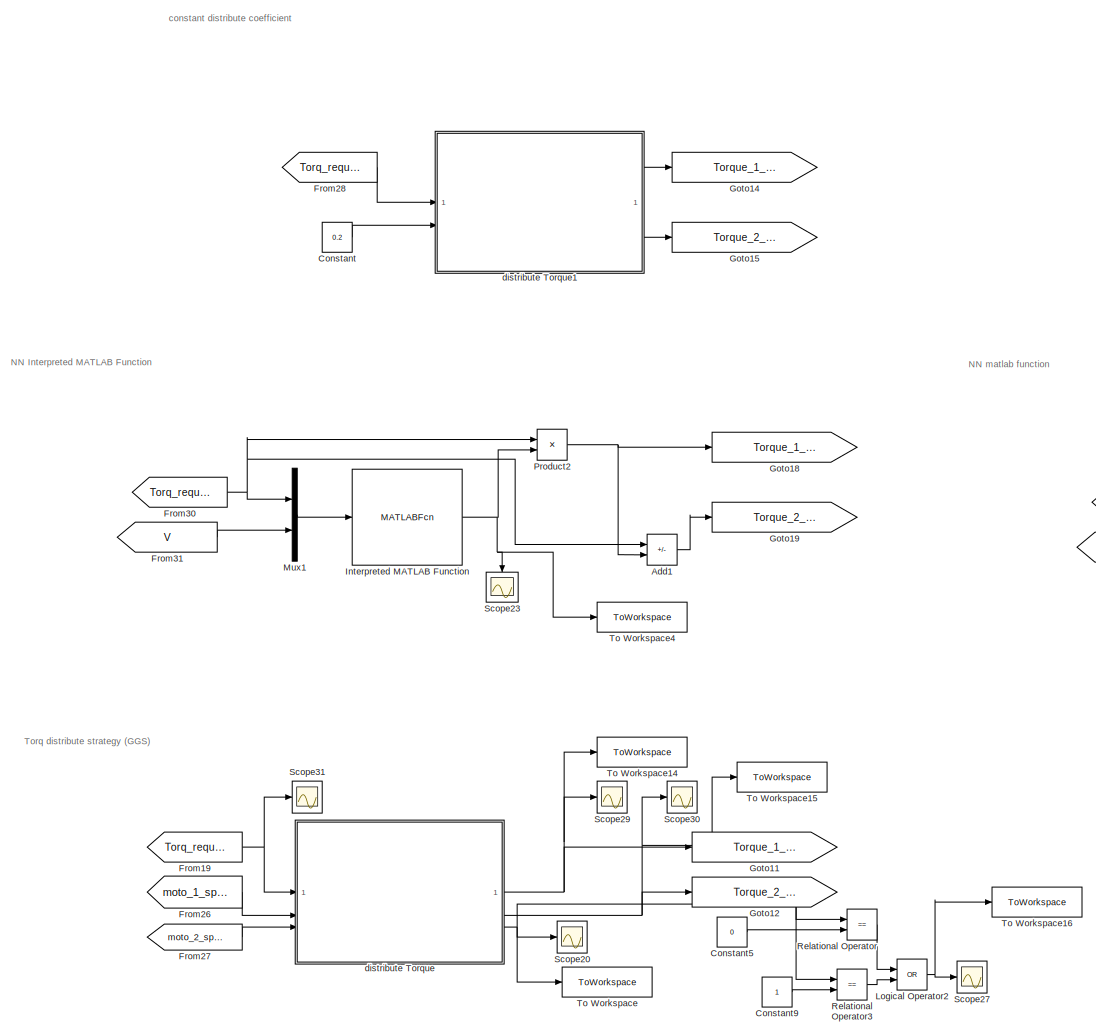
[diagram: root canvas - part 1/7, top center region]
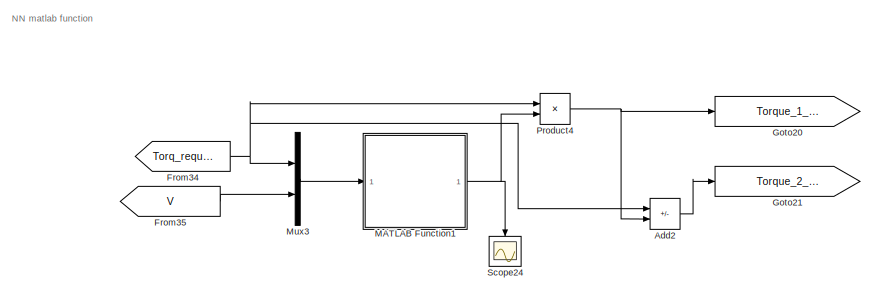
[diagram: root canvas - part 2/7, top right region]
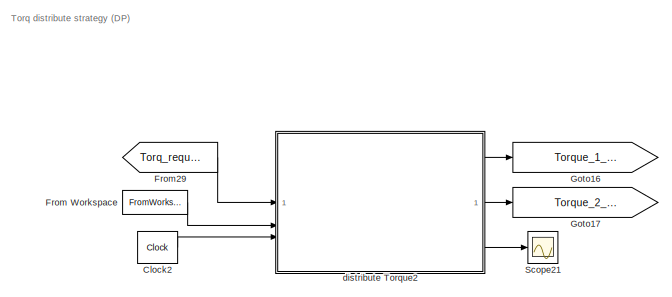
[diagram: root canvas - part 3/7, top right region]
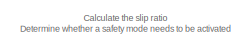
[diagram: root canvas - part 4/7, middle left region]
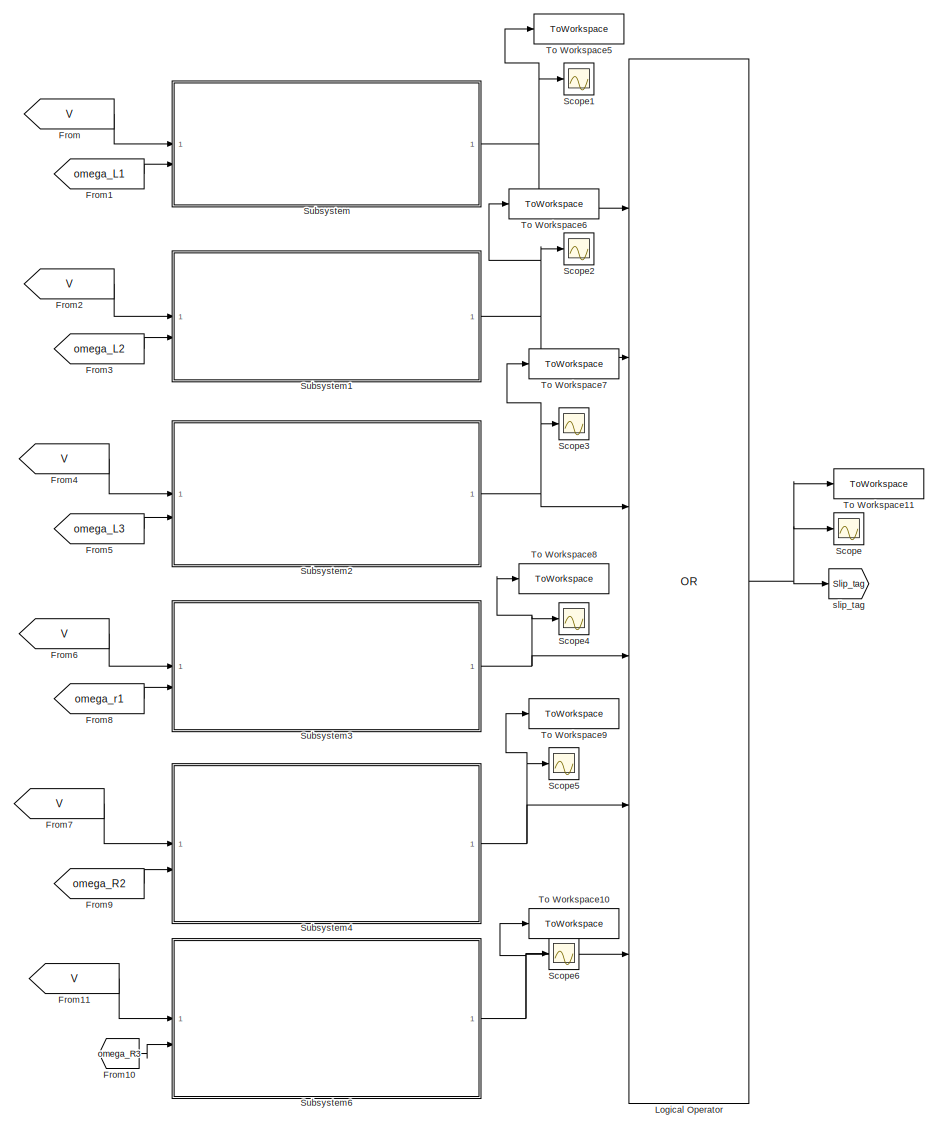
[diagram: root canvas - part 5/7, bottom center region]
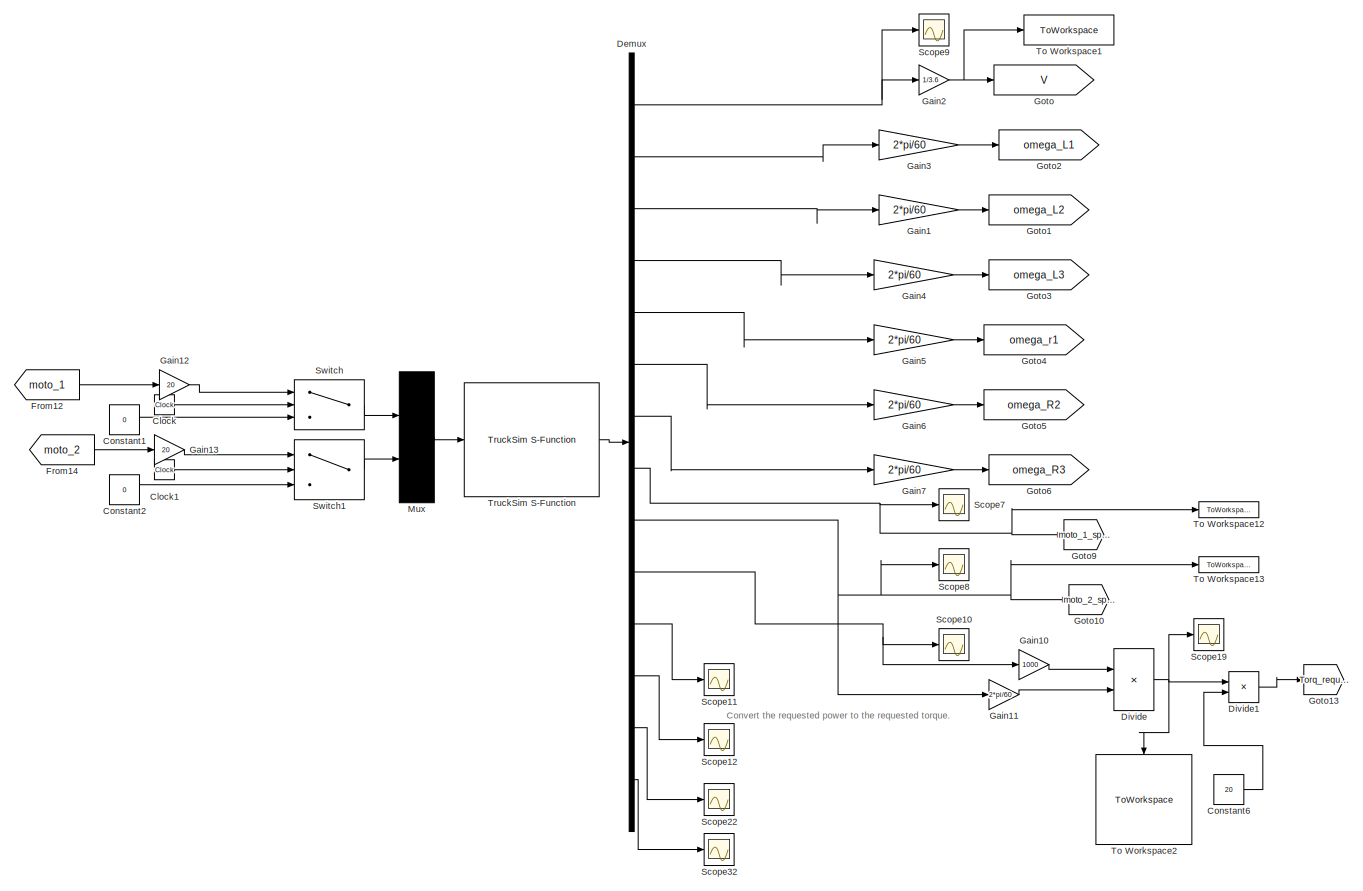
[diagram: root canvas - part 6/7, bottom left region]
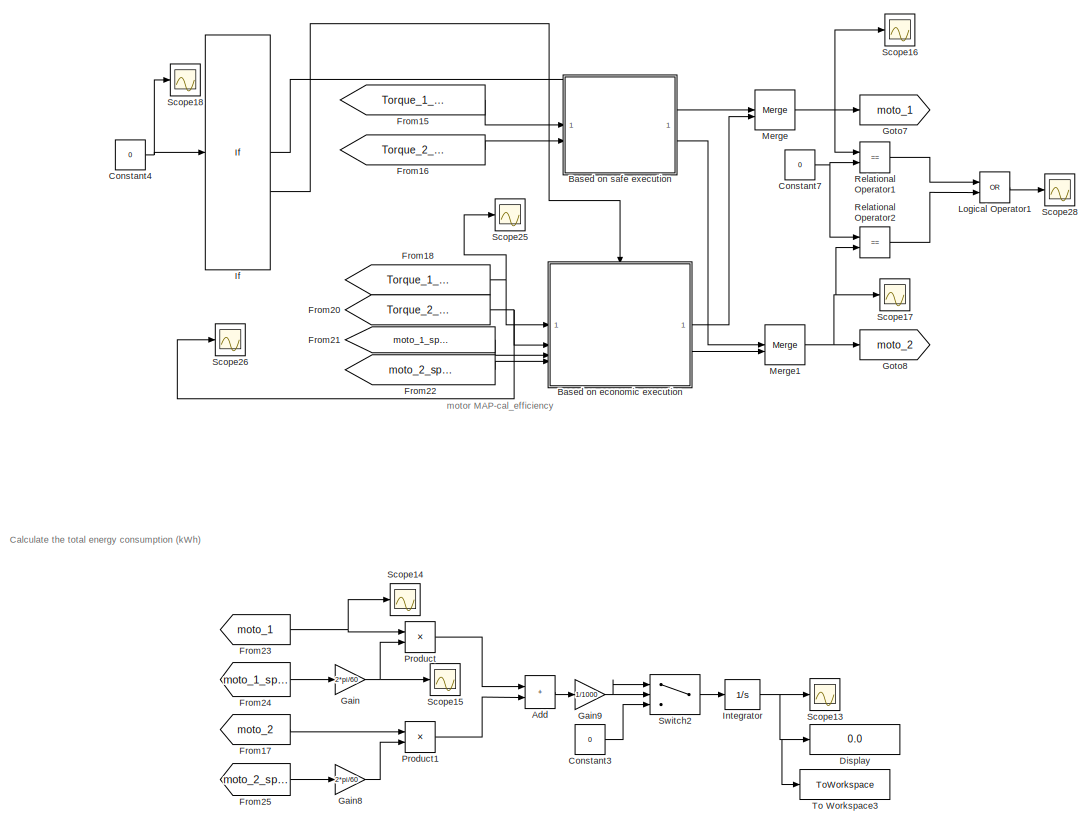
[diagram: root canvas - part 7/7, bottom center region]
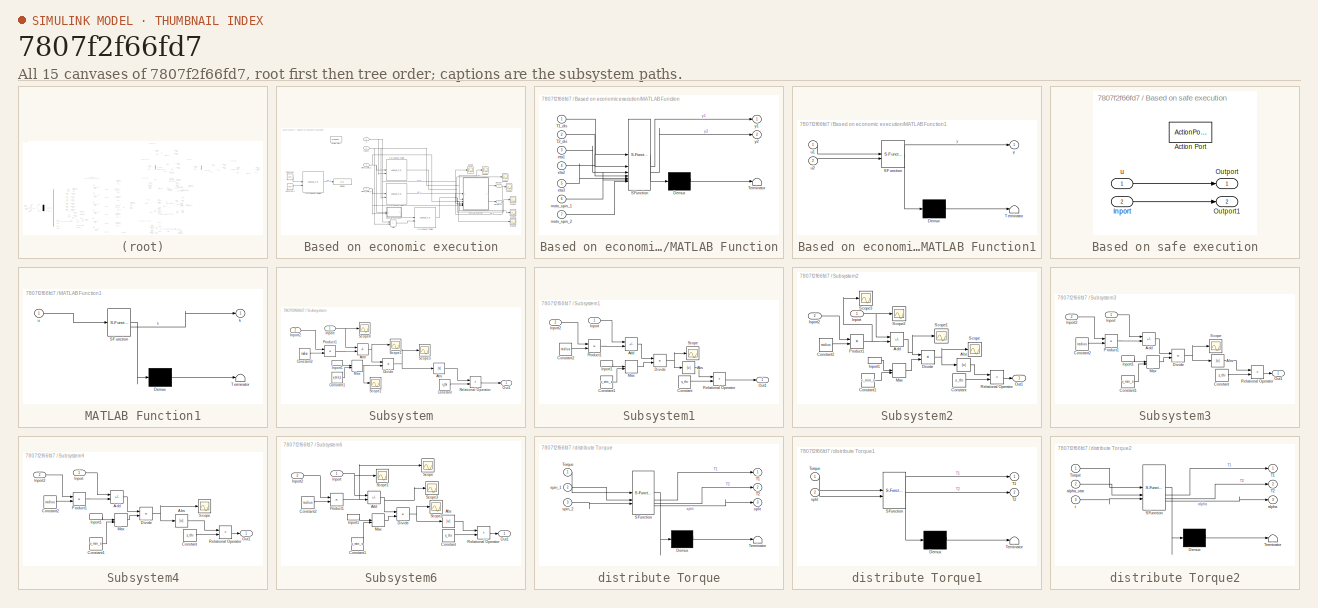
[diagram: thumbnail index - all 15 canvases of the model, root first then tree order]
MODEL slx_7807f2f66fd7
KIND model
CONFIG AbsTol = auto
CONFIG EnableMultiTasking = off
CONFIG FixedStep = 0.0005
CONFIG MaxStep = auto
CONFIG MinStep = auto
CONFIG RelTol = 1e-3
CONFIG SampleTimeConstraint = Unconstrained
CONFIG SolverName = FixedStepAuto
CONFIG StartTime = 0.0
CONFIG StopTime = 20
BLOCK [Sum] Add
  IconShape = rectangular
BLOCK [Sum] Add1
  Commented = on
  IconShape = rectangular
  Inputs = +-
BLOCK [Sum] Add2
  Commented = on
  IconShape = rectangular
  Inputs = +-
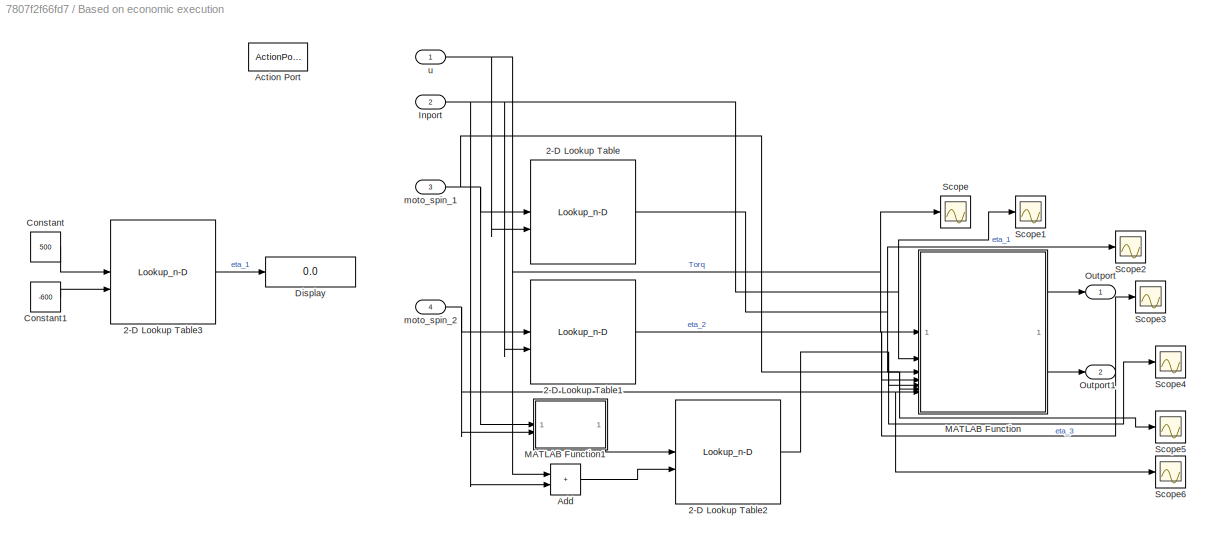
BLOCK [SubSystem] Based on economic execution
  TreatAsAtomicUnit = on
BLOCK [Lookup_n-D] Based on economic execution/2-D Lookup Table
  BreakpointsForDimension1 = speed_rpm
  BreakpointsForDimension2 = torque_nm
  InputPortMap = u0,u1
  InternalRulePriority = Speed
  RndMeth = Simplest
  Table = efficiency_map
BLOCK [Lookup_n-D] Based on economic execution/2-D Lookup Table1
  BreakpointsForDimension1 = speed_rpm
  BreakpointsForDimension2 = torque_nm
  InputPortMap = u0,u1
  InternalRulePriority = Speed
  RndMeth = Simplest
  Table = efficiency_map
BLOCK [Lookup_n-D] Based on economic execution/2-D Lookup Table2
  BreakpointsForDimension1 = speed_rpm
  BreakpointsForDimension2 = torque_nm
  InputPortMap = u0,u1
  InternalRulePriority = Speed
  RndMeth = Simplest
  Table = efficiency_map
BLOCK [Lookup_n-D] Based on economic execution/2-D Lookup Table3
  BreakpointsForDimension1 = speed_rpm
  BreakpointsForDimension2 = torque_nm
  InputPortMap = u0,u1
  InternalRulePriority = Speed
  RndMeth = Simplest
  Table = efficiency_map
BLOCK [ActionPort] Based on economic execution/Action Port
  ActionPortLabel = else
BLOCK [Sum] Based on economic execution/Add
  IconShape = rectangular
BLOCK [Constant] Based on economic execution/Constant
  Value = 500
BLOCK [Constant] Based on economic execution/Constant1
  Value = -600
BLOCK [Display] Based on economic execution/Display
  Decimation = 1
BLOCK [Inport] Based on economic execution/Inport
  Port = 2
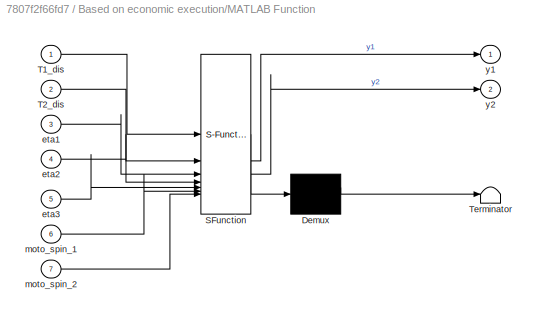
BLOCK [SubSystem] Based on economic execution/MATLAB Function
  ErrorFcn = Stateflow.Translate.translate
  PermitHierarchicalResolution = ExplicitOnly
  SFBlockType = MATLAB Function
  TreatAsAtomicUnit = on
BLOCK [Demux] Based on economic execution/MATLAB Function/ Demux 
  Outputs = 1
BLOCK [S-Function] Based on economic execution/MATLAB Function/ SFunction 
  EnableBusSupport = on
  FunctionName = sf_sfun
  PortCounts = [7 3]
  SFcnIsStateOwnerBlock = off
  SFunctionDeploymentMode = off
  Tag = Stateflow S-Function 3
BLOCK [Terminator] Based on economic execution/MATLAB Function/ Terminator 
BLOCK [Inport] Based on economic execution/MATLAB Function/T1_dis
BLOCK [Inport] Based on economic execution/MATLAB Function/T2_dis
  Port = 2
BLOCK [Inport] Based on economic execution/MATLAB Function/eta1
  Port = 3
BLOCK [Inport] Based on economic execution/MATLAB Function/eta2
  Port = 4
BLOCK [Inport] Based on economic execution/MATLAB Function/eta3
  Port = 5
BLOCK [Inport] Based on economic execution/MATLAB Function/moto_spin_1
  Port = 6
BLOCK [Inport] Based on economic execution/MATLAB Function/moto_spin_2
  Port = 7
BLOCK [Outport] Based on economic execution/MATLAB Function/y1
BLOCK [Outport] Based on economic execution/MATLAB Function/y2
  Port = 2
BLOCK [SubSystem] Based on economic execution/MATLAB Function1
  ErrorFcn = Stateflow.Translate.translate
  PermitHierarchicalResolution = ExplicitOnly
  SFBlockType = MATLAB Function
  TreatAsAtomicUnit = on
BLOCK [Demux] Based on economic execution/MATLAB Function1/ Demux 
  Outputs = 1
BLOCK [S-Function] Based on economic execution/MATLAB Function1/ SFunction 
  EnableBusSupport = on
  FunctionName = sf_sfun
  PortCounts = [2 2]
  SFcnIsStateOwnerBlock = off
  SFunctionDeploymentMode = off
  Tag = Stateflow S-Function 4
BLOCK [Terminator] Based on economic execution/MATLAB Function1/ Terminator 
BLOCK [Inport] Based on economic execution/MATLAB Function1/u1
BLOCK [Inport] Based on economic execution/MATLAB Function1/u2
  Port = 2
BLOCK [Outport] Based on economic execution/MATLAB Function1/y
BLOCK [Outport] Based on economic execution/Outport
BLOCK [Outport] Based on economic execution/Outport1
  Port = 2
BLOCK [Scope] Based on economic execution/Scope
  Floating = off
  NumInputPorts = 1
  ScopeSpecificationString = Simulink.scopes.TimeScopeBlockCfg('CurrentConfiguration', extmgr.ConfigurationSet(extmgr.Configuration('Core','General UI',true),extmgr.Configuration('Core','Source UI',true),extmgr.Configuration('Sources','WiredSimulink',true,'DataLoggingVariableName','ScopeData7'),extmgr.Configuration('Visuals','Time Domain',true,'SerializedDisplays',{struct('MinYLimReal','-20.50033','MaxYLimReal','184.50297','Y...<+1462ch>
BLOCK [Scope] Based on economic execution/Scope1
  Floating = off
  NumInputPorts = 1
  ScopeSpecificationString = Simulink.scopes.TimeScopeBlockCfg('CurrentConfiguration', extmgr.ConfigurationSet(extmgr.Configuration('Core','General UI',true),extmgr.Configuration('Core','Source UI',true),extmgr.Configuration('Sources','WiredSimulink',true,'DataLoggingVariableName','ScopeData8'),extmgr.Configuration('Visuals','Time Domain',true,'SerializedDisplays',{struct('MinYLimReal','-20.50033','MaxYLimReal','184.50297','Y...<+1464ch>
BLOCK [Scope] Based on economic execution/Scope2
  Floating = off
  NumInputPorts = 1
  ScopeSpecificationString = Simulink.scopes.TimeScopeBlockCfg('CurrentConfiguration', extmgr.ConfigurationSet(extmgr.Configuration('Core','General UI',true),extmgr.Configuration('Core','Source UI',true),extmgr.Configuration('Sources','WiredSimulink',true,'DataLoggingVariableName','ScopeData9'),extmgr.Configuration('Visuals','Time Domain',true,'SerializedDisplays',{struct('MinYLimReal','0.8171','MaxYLimReal','0.95453','YLabel...<+1515ch>
BLOCK [Scope] Based on economic execution/Scope3
  Floating = off
  NumInputPorts = 1
  ScopeSpecificationString = Simulink.scopes.TimeScopeBlockCfg('CurrentConfiguration', extmgr.ConfigurationSet(extmgr.Configuration('Core','General UI',true),extmgr.Configuration('Core','Source UI',true),extmgr.Configuration('Sources','WiredSimulink',true,'DataLoggingVariableName','ScopeData10'),extmgr.Configuration('Visuals','Time Domain',true,'SerializedDisplays',{struct('MinYLimReal','0.8171','MaxYLimReal','0.95454','YLabe...<+1448ch>
BLOCK [Scope] Based on economic execution/Scope4
  Floating = off
  NumInputPorts = 1
  ScopeSpecificationString = Simulink.scopes.TimeScopeBlockCfg('CurrentConfiguration', extmgr.ConfigurationSet(extmgr.Configuration('Core','General UI',true),extmgr.Configuration('Core','Source UI',true),extmgr.Configuration('Sources','WiredSimulink',true,'DataLoggingVariableName','ScopeData11'),extmgr.Configuration('Visuals','Time Domain',true,'SerializedDisplays',{struct('MinYLimReal','0.81713','MaxYLimReal','0.95433','YLab...<+1452ch>
BLOCK [Scope] Based on economic execution/Scope5
  Floating = off
  NumInputPorts = 1
  ScopeSpecificationString = Simulink.scopes.TimeScopeBlockCfg('CurrentConfiguration', extmgr.ConfigurationSet(extmgr.Configuration('Core','General UI',true),extmgr.Configuration('Core','Source UI',true),extmgr.Configuration('Sources','WiredSimulink',true,'DataLoggingVariableName','ScopeData12'),extmgr.Configuration('Visuals','Time Domain',true,'SerializedDisplays',{struct('MinYLimReal','1570.94394','MaxYLimReal','1626.73685'...<+1482ch>
BLOCK [Scope] Based on economic execution/Scope6
  Floating = off
  NumInputPorts = 1
  ScopeSpecificationString = Simulink.scopes.TimeScopeBlockCfg('CurrentConfiguration', extmgr.ConfigurationSet(extmgr.Configuration('Core','General UI',true),extmgr.Configuration('Core','Source UI',true),extmgr.Configuration('Sources','WiredSimulink',true,'DataLoggingVariableName','ScopeData13'),extmgr.Configuration('Visuals','Time Domain',true),extmgr.Configuration('Tools','Plot Navigation',true),extmgr.Configuration('Tools'...<+41ch>
BLOCK [Inport] Based on economic execution/moto_spin_1
  Port = 3
BLOCK [Inport] Based on economic execution/moto_spin_2
  Port = 4
BLOCK [Inport] Based on economic execution/u
BLOCK [SubSystem] Based on safe execution
  TreatAsAtomicUnit = on
BLOCK [ActionPort] Based on safe execution/Action Port
  ActionPortLabel = if(u1 ~= 0)
BLOCK [Inport] Based on safe execution/Inport
  Port = 2
BLOCK [Outport] Based on safe execution/Outport
BLOCK [Outport] Based on safe execution/Outport1
  Port = 2
BLOCK [Inport] Based on safe execution/u
BLOCK [Clock] Clock
BLOCK [Clock] Clock1
BLOCK [Clock] Clock2
  Commented = on
BLOCK [Constant] Constant
  Commented = on
  Value = 0.2
BLOCK [Constant] Constant1
  Value = 0
BLOCK [Constant] Constant2
  Value = 0
BLOCK [Constant] Constant3
  Value = 0
BLOCK [Constant] Constant4
  Value = 0
BLOCK [Constant] Constant5
  Value = 0
BLOCK [Constant] Constant6
  Value = 20
BLOCK [Constant] Constant7
  Value = 0
BLOCK [Constant] Constant9
BLOCK [Demux] Demux
  Outputs = 14
BLOCK [Display] Display
  Decimation = 1
BLOCK [Product] Divide
  Inputs = */
BLOCK [Product] Divide1
  Inputs = */
BLOCK [From] From
  GotoTag = V
BLOCK [FromWorkspace] From Workspace
  Commented = on
  VariableName = alpha_star
BLOCK [From] From1
  GotoTag = omega_L1
BLOCK [From] From10
  GotoTag = omega_R3
BLOCK [From] From11
  GotoTag = V
BLOCK [From] From12
  GotoTag = moto_1
BLOCK [From] From14
  GotoTag = moto_2
BLOCK [From] From15
  GotoTag = Torque_1_distribute
BLOCK [From] From16
  GotoTag = Torque_2_distribute
BLOCK [From] From17
  GotoTag = moto_2
BLOCK [From] From18
  GotoTag = Torque_1_distribute
BLOCK [From] From19
  GotoTag = Torq_require
BLOCK [From] From2
  GotoTag = V
BLOCK [From] From20
  GotoTag = Torque_2_distribute
BLOCK [From] From21
  GotoTag = moto_1_spin
BLOCK [From] From22
  GotoTag = moto_2_spin
BLOCK [From] From23
  GotoTag = moto_1
BLOCK [From] From24
  GotoTag = moto_1_spin
BLOCK [From] From25
  GotoTag = moto_2_spin
BLOCK [From] From26
  GotoTag = moto_1_spin
BLOCK [From] From27
  GotoTag = moto_2_spin
BLOCK [From] From28
  Commented = on
  GotoTag = Torq_require
BLOCK [From] From29
  Commented = on
  GotoTag = Torq_require
BLOCK [From] From3
  GotoTag = omega_L2
BLOCK [From] From30
  Commented = on
  GotoTag = Torq_require
BLOCK [From] From31
  Commented = on
  GotoTag = V
BLOCK [From] From34
  Commented = on
  GotoTag = Torq_require
BLOCK [From] From35
  Commented = on
  GotoTag = V
BLOCK [From] From4
  GotoTag = V
BLOCK [From] From5
  GotoTag = omega_L3
BLOCK [From] From6
  GotoTag = V
BLOCK [From] From7
  GotoTag = V
BLOCK [From] From8
  GotoTag = omega_r1
BLOCK [From] From9
  GotoTag = omega_R2
BLOCK [Gain] Gain
  Gain = 2*pi/60
BLOCK [Gain] Gain1
  Gain = 2*pi/60
BLOCK [Gain] Gain10
  Gain = 1000
BLOCK [Gain] Gain11
  Gain = 2*pi/60
BLOCK [Gain] Gain12
  Gain = 20
BLOCK [Gain] Gain13
  Gain = 20
BLOCK [Gain] Gain2
  Gain = 1/3.6
BLOCK [Gain] Gain3
  Gain = 2*pi/60
BLOCK [Gain] Gain4
  Gain = 2*pi/60
BLOCK [Gain] Gain5
  Gain = 2*pi/60
BLOCK [Gain] Gain6
  Gain = 2*pi/60
BLOCK [Gain] Gain7
  Gain = 2*pi/60
BLOCK [Gain] Gain8
  Gain = 2*pi/60
BLOCK [Gain] Gain9
  Gain = 1/1000
BLOCK [Goto] Goto
  GotoTag = V
BLOCK [Goto] Goto1
  GotoTag = omega_L2
BLOCK [Goto] Goto10
  GotoTag = moto_2_spin
BLOCK [Goto] Goto11
  GotoTag = Torque_1_distribute
BLOCK [Goto] Goto12
  GotoTag = Torque_2_distribute
BLOCK [Goto] Goto13
  GotoTag = Torq_require
BLOCK [Goto] Goto14
  Commented = on
  GotoTag = Torque_1_distribute
BLOCK [Goto] Goto15
  Commented = on
  GotoTag = Torque_2_distribute
BLOCK [Goto] Goto16
  Commented = on
  GotoTag = Torque_1_distribute
BLOCK [Goto] Goto17
  Commented = on
  GotoTag = Torque_2_distribute
BLOCK [Goto] Goto18
  Commented = on
  GotoTag = Torque_1_distribute
BLOCK [Goto] Goto19
  Commented = on
  GotoTag = Torque_2_distribute
BLOCK [Goto] Goto2
  GotoTag = omega_L1
BLOCK [Goto] Goto20
  Commented = on
  GotoTag = Torque_1_distribute
BLOCK [Goto] Goto21
  Commented = on
  GotoTag = Torque_2_distribute
BLOCK [Goto] Goto3
  GotoTag = omega_L3
BLOCK [Goto] Goto4
  GotoTag = omega_r1
BLOCK [Goto] Goto5
  GotoTag = omega_R2
BLOCK [Goto] Goto6
  GotoTag = omega_R3
BLOCK [Goto] Goto7
  GotoTag = moto_1
BLOCK [Goto] Goto8
  GotoTag = moto_2
BLOCK [Goto] Goto9
  GotoTag = moto_1_spin
BLOCK [If] If
  IfExpression = u1 ~= 0
BLOCK [Integrator] Integrator
BLOCK [MATLABFcn] Interpreted MATLAB Function
  Commented = on
  MATLABFcn = predict_k_py
BLOCK [Logic] Logical Operator
  AllPortsSameDT = off
  Inputs = 6
  Operator = OR
  OutDataTypeStr = boolean
BLOCK [Logic] Logical Operator1
  AllPortsSameDT = off
  Operator = OR
  OutDataTypeStr = boolean
BLOCK [Logic] Logical Operator2
  AllPortsSameDT = off
  Operator = OR
  OutDataTypeStr = boolean
BLOCK [SubSystem] MATLAB Function1
  Commented = on
  ErrorFcn = Stateflow.Translate.translate
  PermitHierarchicalResolution = ExplicitOnly
  SFBlockType = MATLAB Function
  TreatAsAtomicUnit = on
BLOCK [Demux] MATLAB Function1/ Demux 
  Outputs = 1
BLOCK [S-Function] MATLAB Function1/ SFunction 
  EnableBusSupport = on
  FunctionName = sf_sfun
  PortCounts = [1 2]
  SFcnIsStateOwnerBlock = off
  SFunctionDeploymentMode = off
  Tag = Stateflow S-Function 7
BLOCK [Terminator] MATLAB Function1/ Terminator 
BLOCK [Outport] MATLAB Function1/k
BLOCK [Inport] MATLAB Function1/u
BLOCK [Merge] Merge
BLOCK [Merge] Merge1
BLOCK [Mux] Mux
  DisplayOption = bar
  Inputs = 2
BLOCK [Mux] Mux1
  Commented = on
  DisplayOption = bar
  Inputs = 2
BLOCK [Mux] Mux3
  Commented = on
  DisplayOption = bar
  Inputs = 2
BLOCK [Product] Product
BLOCK [Product] Product1
BLOCK [Product] Product2
  Commented = on
BLOCK [Product] Product4
  Commented = on
BLOCK [RelationalOperator] Relational Operator
  InputSameDT = off
  Operator = ==
  OutDataTypeStr = boolean
  RndMeth = Simplest
BLOCK [RelationalOperator] Relational Operator1
  InputSameDT = off
  Operator = ==
  OutDataTypeStr = boolean
  RndMeth = Simplest
BLOCK [RelationalOperator] Relational Operator2
  InputSameDT = off
  Operator = ==
  OutDataTypeStr = boolean
  RndMeth = Simplest
BLOCK [RelationalOperator] Relational Operator3
  InputSameDT = off
  Operator = ==
  OutDataTypeStr = boolean
  RndMeth = Simplest
BLOCK [Scope] Scope
  Floating = off
  NumInputPorts = 1
  ScopeSpecificationString = Simulink.scopes.TimeScopeBlockCfg('CurrentConfiguration', extmgr.ConfigurationSet(extmgr.Configuration('Core','General UI',true),extmgr.Configuration('Core','Source UI',true),extmgr.Configuration('Sources','WiredSimulink',true),extmgr.Configuration('Visuals','Time Domain',true,'SerializedDisplays',{struct('MinYLimReal','-1.00000','MaxYLimReal','1.00000','YLabelReal','','MinYLimMag','0.00000','MaxY...<+1493ch>
BLOCK [Scope] Scope1
  Floating = off
  NumInputPorts = 1
  ScopeSpecificationString = Simulink.scopes.TimeScopeBlockCfg('CurrentConfiguration', extmgr.ConfigurationSet(extmgr.Configuration('Core','General UI',true),extmgr.Configuration('Core','Source UI',true),extmgr.Configuration('Sources','WiredSimulink',true,'DataLoggingVariableName','ScopeData1'),extmgr.Configuration('Visuals','Time Domain',true,'SerializedDisplays',{struct('MinYLimReal','-1.00000','MaxYLimReal','1.00000','YLab...<+1525ch>
BLOCK [Scope] Scope10
  Floating = off
  NumInputPorts = 1
  ScopeSpecificationString = Simulink.scopes.TimeScopeBlockCfg('CurrentConfiguration', extmgr.ConfigurationSet(extmgr.Configuration('Core','General UI',true),extmgr.Configuration('Core','Source UI',true),extmgr.Configuration('Sources','WiredSimulink',true,'DataLoggingVariableName','ScopeData1'),extmgr.Configuration('Visuals','Time Domain',true,'SerializedDisplays',{struct('MinYLimReal','-42679.10675','MaxYLimReal','161935.568...<+1558ch>
BLOCK [Scope] Scope11
  Floating = off
  NumInputPorts = 1
  ScopeSpecificationString = Simulink.scopes.TimeScopeBlockCfg('CurrentConfiguration', extmgr.ConfigurationSet(extmgr.Configuration('Core','General UI',true),extmgr.Configuration('Core','Source UI',true),extmgr.Configuration('Sources','WiredSimulink',true,'DataLoggingVariableName','ScopeData2'),extmgr.Configuration('Visuals','Time Domain',true,'SerializedDisplays',{struct('MinYLimReal','-8.81889','MaxYLimReal','79.37005','YLa...<+1528ch>
BLOCK [Scope] Scope12
  Floating = off
  NumInputPorts = 1
  ScopeSpecificationString = Simulink.scopes.TimeScopeBlockCfg('CurrentConfiguration', extmgr.ConfigurationSet(extmgr.Configuration('Core','General UI',true),extmgr.Configuration('Core','Source UI',true),extmgr.Configuration('Sources','WiredSimulink',true,'DataLoggingVariableName','ScopeData3'),extmgr.Configuration('Visuals','Time Domain',true,'SerializedDisplays',{struct('MinYLimReal','-35.27558','MaxYLimReal','317.48019','Y...<+1534ch>
BLOCK [Scope] Scope13
  Floating = off
  NumInputPorts = 1
  ScopeSpecificationString = Simulink.scopes.TimeScopeBlockCfg('CurrentConfiguration', extmgr.ConfigurationSet(extmgr.Configuration('Core','General UI',true),extmgr.Configuration('Core','Source UI',true),extmgr.Configuration('Sources','WiredSimulink',true,'DataLoggingVariableName','ScopeData1'),extmgr.Configuration('Visuals','Time Domain',true,'SerializedDisplays',{struct('MinYLimReal','-31159.3931','MaxYLimReal','280434.5379...<+1571ch>
BLOCK [Scope] Scope14
  Floating = off
  NumInputPorts = 1
  ScopeSpecificationString = Simulink.scopes.TimeScopeBlockCfg('CurrentConfiguration', extmgr.ConfigurationSet(extmgr.Configuration('Core','General UI',true),extmgr.Configuration('Core','Source UI',true),extmgr.Configuration('Sources','WiredSimulink',true,'DataLoggingVariableName','ScopeData2'),extmgr.Configuration('Visuals','Time Domain',true,'SerializedDisplays',{struct('MinYLimReal','-7253.83521','MaxYLimReal','13334.92725...<+1479ch>
BLOCK [Scope] Scope15
  Floating = off
  NumInputPorts = 1
  ScopeSpecificationString = Simulink.scopes.TimeScopeBlockCfg('CurrentConfiguration', extmgr.ConfigurationSet(extmgr.Configuration('Core','General UI',true),extmgr.Configuration('Core','Source UI',true),extmgr.Configuration('Sources','WiredSimulink',true,'DataLoggingVariableName','ScopeData3'),extmgr.Configuration('Visuals','Time Domain',true,'SerializedDisplays',{struct('MinYLimReal','-672.82558','MaxYLimReal','7556.59873',...<+1470ch>
BLOCK [Scope] Scope16
  Floating = off
  NumInputPorts = 1
  ScopeSpecificationString = Simulink.scopes.TimeScopeBlockCfg('CurrentConfiguration', extmgr.ConfigurationSet(extmgr.Configuration('Core','General UI',true),extmgr.Configuration('Core','Source UI',true),extmgr.Configuration('Sources','WiredSimulink',true,'DataLoggingVariableName','ScopeData4'),extmgr.Configuration('Visuals','Time Domain',true,'SerializedDisplays',{struct('MinYLimReal','-20.50033','MaxYLimReal','184.50297','Y...<+1531ch>
BLOCK [Scope] Scope17
  Floating = off
  NumInputPorts = 1
  ScopeSpecificationString = Simulink.scopes.TimeScopeBlockCfg('CurrentConfiguration', extmgr.ConfigurationSet(extmgr.Configuration('Core','General UI',true),extmgr.Configuration('Core','Source UI',true),extmgr.Configuration('Sources','WiredSimulink',true,'DataLoggingVariableName','ScopeData5'),extmgr.Configuration('Visuals','Time Domain',true,'SerializedDisplays',{struct('MinYLimReal','-20.50033','MaxYLimReal','184.50297','Y...<+1547ch>
BLOCK [Scope] Scope18
  Floating = off
  NumInputPorts = 1
  ScopeSpecificationString = Simulink.scopes.TimeScopeBlockCfg('CurrentConfiguration', extmgr.ConfigurationSet(extmgr.Configuration('Core','General UI',true),extmgr.Configuration('Core','Source UI',true),extmgr.Configuration('Sources','WiredSimulink',true,'DataLoggingVariableName','ScopeData6'),extmgr.Configuration('Visuals','Time Domain',true,'SerializedDisplays',{struct('MinYLimReal','-1.00000','MaxYLimReal','1.00000','YLab...<+1492ch>
BLOCK [Scope] Scope19
  Floating = off
  NumInputPorts = 1
  ScopeSpecificationString = Simulink.scopes.TimeScopeBlockCfg('CurrentConfiguration', extmgr.ConfigurationSet(extmgr.Configuration('Core','General UI',true),extmgr.Configuration('Core','Source UI',true),extmgr.Configuration('Sources','WiredSimulink',true,'DataLoggingVariableName','ScopeData7'),extmgr.Configuration('Visuals','Time Domain',true,'SerializedDisplays',{struct('MinYLimReal','-820.0132','MaxYLimReal','7380.11882','...<+1551ch>
BLOCK [Scope] Scope2
  Floating = off
  NumInputPorts = 1
  ScopeSpecificationString = Simulink.scopes.TimeScopeBlockCfg('CurrentConfiguration', extmgr.ConfigurationSet(extmgr.Configuration('Core','General UI',true),extmgr.Configuration('Core','Source UI',true),extmgr.Configuration('Sources','WiredSimulink',true,'DataLoggingVariableName','ScopeData2'),extmgr.Configuration('Visuals','Time Domain',true,'SerializedDisplays',{struct('MinYLimReal','-0.125','MaxYLimReal','1.125','YLabelRe...<+1514ch>
BLOCK [Scope] Scope20
  Floating = off
  NumInputPorts = 1
  ScopeSpecificationString = Simulink.scopes.TimeScopeBlockCfg('CurrentConfiguration', extmgr.ConfigurationSet(extmgr.Configuration('Core','General UI',true),extmgr.Configuration('Core','Source UI',true),extmgr.Configuration('Sources','WiredSimulink',true,'DataLoggingVariableName','ScopeData8'),extmgr.Configuration('Visuals','Time Domain',true,'SerializedDisplays',{struct('MinYLimReal','-0.12375','MaxYLimReal','1.11375','YLab...<+1523ch>
BLOCK [Scope] Scope21
  Commented = on
  Floating = off
  NumInputPorts = 1
  ScopeSpecificationString = Simulink.scopes.TimeScopeBlockCfg('CurrentConfiguration', extmgr.ConfigurationSet(extmgr.Configuration('Core','General UI',true),extmgr.Configuration('Core','Source UI',true),extmgr.Configuration('Sources','WiredSimulink',true,'DataLoggingVariableName','ScopeData1'),extmgr.Configuration('Visuals','Time Domain',true,'SerializedDisplays',{struct('MinYLimReal','-0.0625','MaxYLimReal','0.5625','YLabel...<+1466ch>
BLOCK [Scope] Scope22
  Floating = off
  NumInputPorts = 1
  ScopeSpecificationString = Simulink.scopes.TimeScopeBlockCfg('CurrentConfiguration', extmgr.ConfigurationSet(extmgr.Configuration('Core','General UI',true),extmgr.Configuration('Core','Source UI',true),extmgr.Configuration('Sources','WiredSimulink',true,'DataLoggingVariableName','ScopeData1'),extmgr.Configuration('Visuals','Time Domain',true,'SerializedDisplays',{struct('MinYLimReal','-3.00941','MaxYLimReal','27.08467','YLa...<+1528ch>
BLOCK [Scope] Scope23
  Commented = on
  Floating = off
  NameLocation = left
  NumInputPorts = 1
  ScopeSpecificationString = Simulink.scopes.TimeScopeBlockCfg('CurrentConfiguration', extmgr.ConfigurationSet(extmgr.Configuration('Core','General UI',true),extmgr.Configuration('Core','Source UI',true),extmgr.Configuration('Sources','WiredSimulink',true,'DataLoggingVariableName','ScopeData2'),extmgr.Configuration('Visuals','Time Domain',true,'SerializedDisplays',{struct('MinYLimReal','-0.125','MaxYLimReal','1.125','YLabelRe...<+1545ch>
BLOCK [Scope] Scope24
  Commented = on
  Floating = off
  NameLocation = left
  NumInputPorts = 1
  ScopeSpecificationString = Simulink.scopes.TimeScopeBlockCfg('CurrentConfiguration', extmgr.ConfigurationSet(extmgr.Configuration('Core','General UI',true),extmgr.Configuration('Core','Source UI',true),extmgr.Configuration('Sources','WiredSimulink',true,'DataLoggingVariableName','ScopeData3'),extmgr.Configuration('Visuals','Time Domain',true,'SerializedDisplays',{struct('MinYLimReal','-0.125','MaxYLimReal','1.125','YLabelRe...<+1533ch>
BLOCK [Scope] Scope25
  Floating = off
  NumInputPorts = 1
  ScopeSpecificationString = Simulink.scopes.TimeScopeBlockCfg('CurrentConfiguration', extmgr.ConfigurationSet(extmgr.Configuration('Core','General UI',true),extmgr.Configuration('Core','Source UI',true),extmgr.Configuration('Sources','WiredSimulink',true,'DataLoggingVariableName','ScopeData1'),extmgr.Configuration('Visuals','Time Domain',true,'SerializedDisplays',{struct('MinYLimReal','-20.50033','MaxYLimReal','184.50297','Y...<+1514ch>
BLOCK [Scope] Scope26
  Floating = off
  NumInputPorts = 1
  ScopeSpecificationString = Simulink.scopes.TimeScopeBlockCfg('CurrentConfiguration', extmgr.ConfigurationSet(extmgr.Configuration('Core','General UI',true),extmgr.Configuration('Core','Source UI',true),extmgr.Configuration('Sources','WiredSimulink',true,'DataLoggingVariableName','ScopeData2'),extmgr.Configuration('Visuals','Time Domain',true,'SerializedDisplays',{struct('MinYLimReal','-20.50033','MaxYLimReal','184.50297','Y...<+1514ch>
BLOCK [Scope] Scope27
  Floating = off
  NumInputPorts = 1
  ScopeSpecificationString = Simulink.scopes.TimeScopeBlockCfg('CurrentConfiguration', extmgr.ConfigurationSet(extmgr.Configuration('Core','General UI',true),extmgr.Configuration('Core','Source UI',true),extmgr.Configuration('Sources','WiredSimulink',true,'DataLoggingVariableName','ScopeData3'),extmgr.Configuration('Visuals','Time Domain',true,'SerializedDisplays',{struct('MinYLimReal','-0.125','MaxYLimReal','1.125','YLabelRe...<+1521ch>
BLOCK [Scope] Scope28
  Floating = off
  NumInputPorts = 1
  ScopeSpecificationString = Simulink.scopes.TimeScopeBlockCfg('CurrentConfiguration', extmgr.ConfigurationSet(extmgr.Configuration('Core','General UI',true),extmgr.Configuration('Core','Source UI',true),extmgr.Configuration('Sources','WiredSimulink',true,'DataLoggingVariableName','ScopeData4'),extmgr.Configuration('Visuals','Time Domain',true,'SerializedDisplays',{struct('MinYLimReal','-0.125','MaxYLimReal','1.125','YLabelRe...<+1521ch>
BLOCK [Scope] Scope29
  Floating = off
  NumInputPorts = 1
  ScopeSpecificationString = Simulink.scopes.TimeScopeBlockCfg('CurrentConfiguration', extmgr.ConfigurationSet(extmgr.Configuration('Core','General UI',true),extmgr.Configuration('Core','Source UI',true),extmgr.Configuration('Sources','WiredSimulink',true,'DataLoggingVariableName','ScopeData5'),extmgr.Configuration('Visuals','Time Domain',true,'SerializedDisplays',{struct('MinYLimReal','-20.49807','MaxYLimReal','184.48266','Y...<+1545ch>
BLOCK [Scope] Scope3
  Floating = off
  NumInputPorts = 1
  ScopeSpecificationString = Simulink.scopes.TimeScopeBlockCfg('CurrentConfiguration', extmgr.ConfigurationSet(extmgr.Configuration('Core','General UI',true),extmgr.Configuration('Core','Source UI',true),extmgr.Configuration('Sources','WiredSimulink',true,'DataLoggingVariableName','ScopeData3'),extmgr.Configuration('Visuals','Time Domain',true,'SerializedDisplays',{struct('MinYLimReal','-0.125','MaxYLimReal','1.125','YLabelRe...<+1514ch>
BLOCK [Scope] Scope30
  Floating = off
  NumInputPorts = 1
  ScopeSpecificationString = Simulink.scopes.TimeScopeBlockCfg('CurrentConfiguration', extmgr.ConfigurationSet(extmgr.Configuration('Core','General UI',true),extmgr.Configuration('Core','Source UI',true),extmgr.Configuration('Sources','WiredSimulink',true,'DataLoggingVariableName','ScopeData6'),extmgr.Configuration('Visuals','Time Domain',true,'SerializedDisplays',{struct('MinYLimReal','-20.49807','MaxYLimReal','184.48266','Y...<+1559ch>
BLOCK [Scope] Scope31
  Floating = off
  NumInputPorts = 1
  ScopeSpecificationString = Simulink.scopes.TimeScopeBlockCfg('CurrentConfiguration', extmgr.ConfigurationSet(extmgr.Configuration('Core','General UI',true),extmgr.Configuration('Core','Source UI',true),extmgr.Configuration('Sources','WiredSimulink',true,'DataLoggingVariableName','ScopeData14'),extmgr.Configuration('Visuals','Time Domain',true,'SerializedDisplays',{struct('MinYLimReal','-5.09041','MaxYLimReal','45.81366','YL...<+1556ch>
BLOCK [Scope] Scope32
  Floating = off
  NumInputPorts = 1
  ScopeSpecificationString = Simulink.scopes.TimeScopeBlockCfg('CurrentConfiguration', extmgr.ConfigurationSet(extmgr.Configuration('Core','General UI',true),extmgr.Configuration('Core','Source UI',true),extmgr.Configuration('Sources','WiredSimulink',true,'DataLoggingVariableName','ScopeData1'),extmgr.Configuration('Visuals','Time Domain',true,'SerializedDisplays',{struct('MinYLimReal','-0.29613','MaxYLimReal','0.27151','YLab...<+1510ch>
BLOCK [Scope] Scope4
  Floating = off
  NumInputPorts = 1
  ScopeSpecificationString = Simulink.scopes.TimeScopeBlockCfg('CurrentConfiguration', extmgr.ConfigurationSet(extmgr.Configuration('Core','General UI',true),extmgr.Configuration('Core','Source UI',true),extmgr.Configuration('Sources','WiredSimulink',true,'DataLoggingVariableName','ScopeData5'),extmgr.Configuration('Visuals','Time Domain',true,'SerializedDisplays',{struct('MinYLimReal','-0.125','MaxYLimReal','1.125','YLabelRe...<+1514ch>
BLOCK [Scope] Scope5
  Floating = off
  NumInputPorts = 1
  ScopeSpecificationString = Simulink.scopes.TimeScopeBlockCfg('CurrentConfiguration', extmgr.ConfigurationSet(extmgr.Configuration('Core','General UI',true),extmgr.Configuration('Core','Source UI',true),extmgr.Configuration('Sources','WiredSimulink',true,'DataLoggingVariableName','ScopeData6'),extmgr.Configuration('Visuals','Time Domain',true,'SerializedDisplays',{struct('MinYLimReal','-0.125','MaxYLimReal','1.125','YLabelRe...<+1514ch>
BLOCK [Scope] Scope6
  Floating = off
  NumInputPorts = 1
  ScopeSpecificationString = Simulink.scopes.TimeScopeBlockCfg('CurrentConfiguration', extmgr.ConfigurationSet(extmgr.Configuration('Core','General UI',true),extmgr.Configuration('Core','Source UI',true),extmgr.Configuration('Sources','WiredSimulink',true,'DataLoggingVariableName','ScopeData7'),extmgr.Configuration('Visuals','Time Domain',true,'SerializedDisplays',{struct('MinYLimReal','-0.125','MaxYLimReal','1.125','YLabelRe...<+1514ch>
BLOCK [Scope] Scope7
  Floating = off
  NumInputPorts = 1
  ScopeSpecificationString = Simulink.scopes.TimeScopeBlockCfg('CurrentConfiguration', extmgr.ConfigurationSet(extmgr.Configuration('Core','General UI',true),extmgr.Configuration('Core','Source UI',true),extmgr.Configuration('Sources','WiredSimulink',true,'DataLoggingVariableName','ScopeData1'),extmgr.Configuration('Visuals','Time Domain',true,'SerializedDisplays',{struct('MinYLimReal','1570.94394','MaxYLimReal','1626.73685',...<+1545ch>
BLOCK [Scope] Scope8
  Floating = off
  NumInputPorts = 1
  ScopeSpecificationString = Simulink.scopes.TimeScopeBlockCfg('CurrentConfiguration', extmgr.ConfigurationSet(extmgr.Configuration('Core','General UI',true),extmgr.Configuration('Core','Source UI',true),extmgr.Configuration('Sources','WiredSimulink',true,'DataLoggingVariableName','ScopeData2'),extmgr.Configuration('Visuals','Time Domain',true,'SerializedDisplays',{struct('MinYLimReal','1570.98457','MaxYLimReal','1626.12149',...<+1545ch>
BLOCK [Scope] Scope9
  Floating = off
  NumInputPorts = 1
  ScopeSpecificationString = Simulink.scopes.TimeScopeBlockCfg('CurrentConfiguration', extmgr.ConfigurationSet(extmgr.Configuration('Core','General UI',true),extmgr.Configuration('Core','Source UI',true),extmgr.Configuration('Sources','WiredSimulink',true,'DataLoggingVariableName','ScopeData3'),extmgr.Configuration('Visuals','Time Domain',true,'SerializedDisplays',{struct('MinYLimReal','78.80294','MaxYLimReal','80.6251','YLab...<+1525ch>
BLOCK [SubSystem] Subsystem
BLOCK [Abs] Subsystem/Abs
  SaturateOnIntegerOverflow = off
BLOCK [Sum] Subsystem/Add
  IconShape = rectangular
  Inputs = +-
BLOCK [Constant] Subsystem/Constant
  Value = s_thr
BLOCK [Constant] Subsystem/Constant1
  Value = v_min_s
BLOCK [Constant] Subsystem/Constant2
  Value = radius
BLOCK [Product] Subsystem/Divide
  Inputs = */
BLOCK [Inport] Subsystem/Inport
BLOCK [InportShadow] Subsystem/Inport1
BLOCK [Inport] Subsystem/Inport2
  Port = 2
BLOCK [MinMax] Subsystem/Max
  Function = max
  Inputs = 2
BLOCK [Outport] Subsystem/Out1
BLOCK [Product] Subsystem/Product1
BLOCK [RelationalOperator] Subsystem/Relational Operator
  InputSameDT = off
  Operator = >
  OutDataTypeStr = boolean
BLOCK [Scope] Subsystem/Scope1
  Floating = off
  NumInputPorts = 1
  ScopeSpecificationString = Simulink.scopes.TimeScopeBlockCfg('CurrentConfiguration', extmgr.ConfigurationSet(extmgr.Configuration('Core','General UI',true),extmgr.Configuration('Core','Source UI',true),extmgr.Configuration('Sources','WiredSimulink',true,'DataLoggingVariableName','ScopeData1'),extmgr.Configuration('Visuals','Time Domain',true,'SerializedDisplays',{struct('MinYLimReal','-3.29289','MaxYLimReal','0.44329','YLab...<+1569ch>
BLOCK [Scope] Subsystem/Scope2
  Floating = off
  NumInputPorts = 1
  ScopeSpecificationString = Simulink.scopes.TimeScopeBlockCfg('CurrentConfiguration', extmgr.ConfigurationSet(extmgr.Configuration('Core','General UI',true),extmgr.Configuration('Core','Source UI',true),extmgr.Configuration('Sources','WiredSimulink',true,'DataLoggingVariableName','ScopeData2'),extmgr.Configuration('Visuals','Time Domain',true,'SerializedDisplays',{struct('MinYLimReal','-2.20901','MaxYLimReal','20.88107','YLa...<+1572ch>
BLOCK [Scope] Subsystem/Scope3
  Floating = off
  NumInputPorts = 1
  ScopeSpecificationString = Simulink.scopes.TimeScopeBlockCfg('CurrentConfiguration', extmgr.ConfigurationSet(extmgr.Configuration('Core','General UI',true),extmgr.Configuration('Core','Source UI',true),extmgr.Configuration('Sources','WiredSimulink',true,'DataLoggingVariableName','ScopeData4'),extmgr.Configuration('Visuals','Time Domain',true,'SerializedDisplays',{struct('MinYLimReal','-0.17181','MaxYLimReal','0.02257','YLab...<+1572ch>
BLOCK [Scope] Subsystem/Scope4
  Floating = off
  NumInputPorts = 1
  ScopeSpecificationString = Simulink.scopes.TimeScopeBlockCfg('CurrentConfiguration', extmgr.ConfigurationSet(extmgr.Configuration('Core','General UI',true),extmgr.Configuration('Core','Source UI',true),extmgr.Configuration('Sources','WiredSimulink',true,'DataLoggingVariableName','ScopeData3'),extmgr.Configuration('Visuals','Time Domain',true,'SerializedDisplays',{struct('MinYLimReal','-10.15043','MaxYLimReal','21.76345','YL...<+1577ch>
BLOCK [SubSystem] Subsystem1
BLOCK [Abs] Subsystem1/Abs
  SaturateOnIntegerOverflow = off
BLOCK [Sum] Subsystem1/Add
  IconShape = rectangular
  Inputs = +-
BLOCK [Constant] Subsystem1/Constant
  Value = s_thr
BLOCK [Constant] Subsystem1/Constant1
  Value = v_min_s
BLOCK [Constant] Subsystem1/Constant2
  Value = radius
BLOCK [Product] Subsystem1/Divide
  Inputs = */
BLOCK [Inport] Subsystem1/Inport
BLOCK [InportShadow] Subsystem1/Inport1
BLOCK [Inport] Subsystem1/Inport2
  Port = 2
BLOCK [MinMax] Subsystem1/Max
  Function = max
  Inputs = 2
BLOCK [Outport] Subsystem1/Out1
BLOCK [Product] Subsystem1/Product1
BLOCK [RelationalOperator] Subsystem1/Relational Operator
  InputSameDT = off
  Operator = >
  OutDataTypeStr = boolean
BLOCK [Scope] Subsystem1/Scope
  Floating = off
  NumInputPorts = 1
  ScopeSpecificationString = Simulink.scopes.TimeScopeBlockCfg('CurrentConfiguration', extmgr.ConfigurationSet(extmgr.Configuration('Core','General UI',true),extmgr.Configuration('Core','Source UI',true),extmgr.Configuration('Sources','WiredSimulink',true,'DataLoggingVariableName','ScopeData2'),extmgr.Configuration('Visuals','Time Domain',true,'SerializedDisplays',{struct('MinYLimReal','-0.16583','MaxYLimReal','0.02311','YLab...<+1522ch>
BLOCK [SubSystem] Subsystem2
BLOCK [Abs] Subsystem2/Abs
  SaturateOnIntegerOverflow = off
BLOCK [Sum] Subsystem2/Add
  IconShape = rectangular
  Inputs = +-
BLOCK [Constant] Subsystem2/Constant
  Value = s_thr
BLOCK [Constant] Subsystem2/Constant1
  Value = v_min_s
BLOCK [Constant] Subsystem2/Constant2
  Value = radius
BLOCK [Product] Subsystem2/Divide
  Inputs = */
BLOCK [Inport] Subsystem2/Inport
BLOCK [InportShadow] Subsystem2/Inport1
BLOCK [Inport] Subsystem2/Inport2
  Port = 2
BLOCK [MinMax] Subsystem2/Max
  Function = max
  Inputs = 2
BLOCK [Outport] Subsystem2/Out1
BLOCK [Product] Subsystem2/Product1
BLOCK [RelationalOperator] Subsystem2/Relational Operator
  InputSameDT = off
  Operator = >
  OutDataTypeStr = boolean
BLOCK [Scope] Subsystem2/Scope
  Floating = off
  NumInputPorts = 1
  ScopeSpecificationString = Simulink.scopes.TimeScopeBlockCfg('CurrentConfiguration', extmgr.ConfigurationSet(extmgr.Configuration('Core','General UI',true),extmgr.Configuration('Core','Source UI',true),extmgr.Configuration('Sources','WiredSimulink',true,'DataLoggingVariableName','ScopeData1'),extmgr.Configuration('Visuals','Time Domain',true,'SerializedDisplays',{struct('MinYLimReal','-3.65226','MaxYLimReal','0.41242','YLab...<+1454ch>
BLOCK [Scope] Subsystem2/Scope1
  Floating = off
  NumInputPorts = 1
  ScopeSpecificationString = Simulink.scopes.TimeScopeBlockCfg('CurrentConfiguration', extmgr.ConfigurationSet(extmgr.Configuration('Core','General UI',true),extmgr.Configuration('Core','Source UI',true),extmgr.Configuration('Sources','WiredSimulink',true,'DataLoggingVariableName','ScopeData2'),extmgr.Configuration('Visuals','Time Domain',true,'SerializedDisplays',{struct('MinYLimReal','-0.02574','MaxYLimReal','0.0255','YLabe...<+1449ch>
BLOCK [Scope] Subsystem2/Scope2
  Floating = off
  NumInputPorts = 1
  ScopeSpecificationString = Simulink.scopes.TimeScopeBlockCfg('CurrentConfiguration', extmgr.ConfigurationSet(extmgr.Configuration('Core','General UI',true),extmgr.Configuration('Core','Source UI',true),extmgr.Configuration('Sources','WiredSimulink',true,'DataLoggingVariableName','ScopeData3'),extmgr.Configuration('Visuals','Time Domain',true,'SerializedDisplays',{struct('MinYLimReal','18.77026','MaxYLimReal','22.65319','YLa...<+1460ch>
BLOCK [Scope] Subsystem2/Scope3
  Floating = off
  NumInputPorts = 1
  ScopeSpecificationString = Simulink.scopes.TimeScopeBlockCfg('CurrentConfiguration', extmgr.ConfigurationSet(extmgr.Configuration('Core','General UI',true),extmgr.Configuration('Core','Source UI',true),extmgr.Configuration('Sources','WiredSimulink',true,'DataLoggingVariableName','ScopeData4'),extmgr.Configuration('Visuals','Time Domain',true,'SerializedDisplays',{struct('MinYLimReal','-0.12368','MaxYLimReal','0.99936','YLab...<+1456ch>
BLOCK [SubSystem] Subsystem3
BLOCK [Abs] Subsystem3/Abs
  SaturateOnIntegerOverflow = off
BLOCK [Sum] Subsystem3/Add
  IconShape = rectangular
  Inputs = +-
BLOCK [Constant] Subsystem3/Constant
  Value = s_thr
BLOCK [Constant] Subsystem3/Constant1
  Value = v_min_s
BLOCK [Constant] Subsystem3/Constant2
  Value = radius
BLOCK [Product] Subsystem3/Divide
  Inputs = */
BLOCK [Inport] Subsystem3/Inport
BLOCK [InportShadow] Subsystem3/Inport1
BLOCK [Inport] Subsystem3/Inport2
  Port = 2
BLOCK [MinMax] Subsystem3/Max
  Function = max
  Inputs = 2
BLOCK [Outport] Subsystem3/Out1
BLOCK [Product] Subsystem3/Product1
BLOCK [RelationalOperator] Subsystem3/Relational Operator
  InputSameDT = off
  Operator = >
  OutDataTypeStr = boolean
BLOCK [Scope] Subsystem3/Scope
  Floating = off
  NumInputPorts = 1
  ScopeSpecificationString = Simulink.scopes.TimeScopeBlockCfg('CurrentConfiguration', extmgr.ConfigurationSet(extmgr.Configuration('Core','General UI',true),extmgr.Configuration('Core','Source UI',true),extmgr.Configuration('Sources','WiredSimulink',true,'DataLoggingVariableName','ScopeData1'),extmgr.Configuration('Visuals','Time Domain',true,'SerializedDisplays',{struct('MinYLimReal','-0.17402','MaxYLimReal','0.02282','YLab...<+1522ch>
BLOCK [SubSystem] Subsystem4
BLOCK [Abs] Subsystem4/Abs
  SaturateOnIntegerOverflow = off
BLOCK [Sum] Subsystem4/Add
  IconShape = rectangular
  Inputs = +-
BLOCK [Constant] Subsystem4/Constant
  Value = s_thr
BLOCK [Constant] Subsystem4/Constant1
  Value = v_min_s
BLOCK [Constant] Subsystem4/Constant2
  Value = radius
BLOCK [Product] Subsystem4/Divide
  Inputs = */
BLOCK [Inport] Subsystem4/Inport
BLOCK [InportShadow] Subsystem4/Inport1
BLOCK [Inport] Subsystem4/Inport2
  Port = 2
BLOCK [MinMax] Subsystem4/Max
  Function = max
  Inputs = 2
BLOCK [Outport] Subsystem4/Out1
BLOCK [Product] Subsystem4/Product1
BLOCK [RelationalOperator] Subsystem4/Relational Operator
  InputSameDT = off
  Operator = >
  OutDataTypeStr = boolean
BLOCK [Scope] Subsystem4/Scope
  Floating = off
  NumInputPorts = 1
  ScopeSpecificationString = Simulink.scopes.TimeScopeBlockCfg('CurrentConfiguration', extmgr.ConfigurationSet(extmgr.Configuration('Core','General UI',true),extmgr.Configuration('Core','Source UI',true),extmgr.Configuration('Sources','WiredSimulink',true,'DataLoggingVariableName','ScopeData3'),extmgr.Configuration('Visuals','Time Domain',true),extmgr.Configuration('Tools','Plot Navigation',true),extmgr.Configuration('Tools',...<+40ch>
BLOCK [SubSystem] Subsystem6
BLOCK [Abs] Subsystem6/Abs
  SaturateOnIntegerOverflow = off
BLOCK [Sum] Subsystem6/Add
  IconShape = rectangular
  Inputs = +-
BLOCK [Constant] Subsystem6/Constant
  Value = s_thr
BLOCK [Constant] Subsystem6/Constant1
  Value = v_min_s
BLOCK [Constant] Subsystem6/Constant2
  Value = radius
BLOCK [Product] Subsystem6/Divide
  Inputs = */
BLOCK [Inport] Subsystem6/Inport
BLOCK [InportShadow] Subsystem6/Inport1
BLOCK [Inport] Subsystem6/Inport2
  Port = 2
BLOCK [MinMax] Subsystem6/Max
  Function = max
  Inputs = 2
BLOCK [Outport] Subsystem6/Out1
BLOCK [Product] Subsystem6/Product1
BLOCK [RelationalOperator] Subsystem6/Relational Operator
  InputSameDT = off
  Operator = >
  OutDataTypeStr = boolean
BLOCK [Scope] Subsystem6/Scope
  Floating = off
  NumInputPorts = 1
  ScopeSpecificationString = Simulink.scopes.TimeScopeBlockCfg('CurrentConfiguration', extmgr.ConfigurationSet(extmgr.Configuration('Core','General UI',true),extmgr.Configuration('Core','Source UI',true),extmgr.Configuration('Sources','WiredSimulink',true,'DataLoggingVariableName','ScopeData5'),extmgr.Configuration('Visuals','Time Domain',true,'SerializedDisplays',{struct('MinYLimReal','-0.1237','MaxYLimReal','0.99958','YLabe...<+1454ch>
BLOCK [Scope] Subsystem6/Scope1
  Floating = off
  NumInputPorts = 1
  ScopeSpecificationString = Simulink.scopes.TimeScopeBlockCfg('CurrentConfiguration', extmgr.ConfigurationSet(extmgr.Configuration('Core','General UI',true),extmgr.Configuration('Core','Source UI',true),extmgr.Configuration('Sources','WiredSimulink',true,'DataLoggingVariableName','ScopeData6'),extmgr.Configuration('Visuals','Time Domain',true,'SerializedDisplays',{struct('MinYLimReal','-0.11043','MaxYLimReal','0.99389','YLab...<+1454ch>
BLOCK [Scope] Subsystem6/Scope2
  Floating = off
  NumInputPorts = 1
  ScopeSpecificationString = Simulink.scopes.TimeScopeBlockCfg('CurrentConfiguration', extmgr.ConfigurationSet(extmgr.Configuration('Core','General UI',true),extmgr.Configuration('Core','Source UI',true),extmgr.Configuration('Sources','WiredSimulink',true,'DataLoggingVariableName','ScopeData7'),extmgr.Configuration('Visuals','Time Domain',true,'SerializedDisplays',{struct('MinYLimReal','-3.64683','MaxYLimReal','0.41177','YLab...<+1454ch>
BLOCK [Scope] Subsystem6/Scope3
  Floating = off
  NumInputPorts = 1
  ScopeSpecificationString = Simulink.scopes.TimeScopeBlockCfg('CurrentConfiguration', extmgr.ConfigurationSet(extmgr.Configuration('Core','General UI',true),extmgr.Configuration('Core','Source UI',true),extmgr.Configuration('Sources','WiredSimulink',true,'DataLoggingVariableName','ScopeData8'),extmgr.Configuration('Visuals','Time Domain',true,'SerializedDisplays',{struct('MinYLimReal','-0.02575','MaxYLimReal','0.0255','YLabe...<+1449ch>
BLOCK [Switch] Switch
  Criteria = u2 > Threshold
  InputSameDT = off
  SaturateOnIntegerOverflow = off
BLOCK [Switch] Switch1
  Criteria = u2 > Threshold
  InputSameDT = off
  SaturateOnIntegerOverflow = off
BLOCK [Switch] Switch2
  Criteria = u2 > Threshold
  InputSameDT = off
  SaturateOnIntegerOverflow = off
BLOCK [ToWorkspace] To Workspace
  FixptAsFi = on
  MaxDataPoints = inf
  SampleTime = -1
  SaveFormat = Timeseries
  VariableName = simout
BLOCK [ToWorkspace] To Workspace1
  FixptAsFi = on
  MaxDataPoints = inf
  SampleTime = -1
  SaveFormat = Timeseries
  VariableName = simout1
BLOCK [ToWorkspace] To Workspace10
  FixptAsFi = on
  MaxDataPoints = inf
  SampleTime = -1
  SaveFormat = Timeseries
  VariableName = simout10
BLOCK [ToWorkspace] To Workspace11
  FixptAsFi = on
  MaxDataPoints = inf
  SampleTime = -1
  SaveFormat = Timeseries
  VariableName = simout11
BLOCK [ToWorkspace] To Workspace12
  FixptAsFi = on
  MaxDataPoints = inf
  SampleTime = -1
  SaveFormat = Timeseries
  VariableName = simout12
BLOCK [ToWorkspace] To Workspace13
  FixptAsFi = on
  MaxDataPoints = inf
  SampleTime = -1
  SaveFormat = Timeseries
  VariableName = simout13
BLOCK [ToWorkspace] To Workspace14
  FixptAsFi = on
  MaxDataPoints = inf
  SampleTime = -1
  SaveFormat = Timeseries
  VariableName = simout14
BLOCK [ToWorkspace] To Workspace15
  FixptAsFi = on
  MaxDataPoints = inf
  SampleTime = -1
  SaveFormat = Timeseries
  VariableName = simout15
BLOCK [ToWorkspace] To Workspace16
  FixptAsFi = on
  MaxDataPoints = inf
  SampleTime = -1
  SaveFormat = Timeseries
  VariableName = simout16
BLOCK [ToWorkspace] To Workspace2
  FixptAsFi = on
  MaxDataPoints = inf
  NameLocation = left
  SampleTime = -1
  SaveFormat = Timeseries
  VariableName = simout2
BLOCK [ToWorkspace] To Workspace3
  FixptAsFi = on
  MaxDataPoints = inf
  SampleTime = -1
  SaveFormat = Timeseries
  VariableName = simout3
BLOCK [ToWorkspace] To Workspace4
  Commented = on
  FixptAsFi = on
  MaxDataPoints = inf
  SampleTime = -1
  SaveFormat = Timeseries
  VariableName = simout4
BLOCK [ToWorkspace] To Workspace5
  FixptAsFi = on
  MaxDataPoints = inf
  SampleTime = -1
  SaveFormat = Timeseries
  VariableName = simout5
BLOCK [ToWorkspace] To Workspace6
  FixptAsFi = on
  MaxDataPoints = inf
  SampleTime = -1
  SaveFormat = Timeseries
  VariableName = simout6
BLOCK [ToWorkspace] To Workspace7
  FixptAsFi = on
  MaxDataPoints = inf
  SampleTime = -1
  SaveFormat = Timeseries
  VariableName = simout7
BLOCK [ToWorkspace] To Workspace8
  FixptAsFi = on
  MaxDataPoints = inf
  SampleTime = -1
  SaveFormat = Timeseries
  VariableName = simout8
BLOCK [ToWorkspace] To Workspace9
  FixptAsFi = on
  MaxDataPoints = inf
  SampleTime = -1
  SaveFormat = Timeseries
  VariableName = simout9
BLOCK [Reference] TruckSim S-Function  REF=Solver_SF/TruckSim S-Function
  Priority = 1
  SourceBlock = Solver_SF/TruckSim S-Function
  SourceProductName = TruckSim S-Function
  SourceType = Vehicle math model library
BLOCK [SubSystem] distribute Torque
  ErrorFcn = Stateflow.Translate.translate
  PermitHierarchicalResolution = ExplicitOnly
  SFBlockType = MATLAB Function
  TreatAsAtomicUnit = on
BLOCK [Demux] distribute Torque/ Demux 
  Outputs = 1
BLOCK [S-Function] distribute Torque/ SFunction 
  EnableBusSupport = on
  FunctionName = sf_sfun
  PortCounts = [3 4]
  SFcnIsStateOwnerBlock = off
  SFunctionDeploymentMode = off
  Tag = Stateflow S-Function 1
BLOCK [Terminator] distribute Torque/ Terminator 
BLOCK [Outport] distribute Torque/T1
BLOCK [Outport] distribute Torque/T2
  Port = 2
BLOCK [Inport] distribute Torque/Torque
BLOCK [Inport] distribute Torque/spin_1
  Port = 2
BLOCK [Inport] distribute Torque/spin_2
  Port = 3
BLOCK [Outport] distribute Torque/split
  Port = 3
BLOCK [SubSystem] distribute Torque1
  Commented = on
  ErrorFcn = Stateflow.Translate.translate
  PermitHierarchicalResolution = ExplicitOnly
  SFBlockType = MATLAB Function
  TreatAsAtomicUnit = on
BLOCK [Demux] distribute Torque1/ Demux 
  Outputs = 1
BLOCK [S-Function] distribute Torque1/ SFunction 
  EnableBusSupport = on
  FunctionName = sf_sfun
  PortCounts = [2 3]
  SFcnIsStateOwnerBlock = off
  SFunctionDeploymentMode = off
  Tag = Stateflow S-Function 2
BLOCK [Terminator] distribute Torque1/ Terminator 
BLOCK [Outport] distribute Torque1/T1
BLOCK [Outport] distribute Torque1/T2
  Port = 2
BLOCK [Inport] distribute Torque1/Torque
BLOCK [Inport] distribute Torque1/split
  Port = 2
BLOCK [SubSystem] distribute Torque2
  Commented = on
  ErrorFcn = Stateflow.Translate.translate
  PermitHierarchicalResolution = ExplicitOnly
  SFBlockType = MATLAB Function
  TreatAsAtomicUnit = on
BLOCK [Demux] distribute Torque2/ Demux 
  Outputs = 1
BLOCK [S-Function] distribute Torque2/ SFunction 
  EnableBusSupport = on
  FunctionName = sf_sfun
  PortCounts = [3 4]
  SFcnIsStateOwnerBlock = off
  SFunctionDeploymentMode = off
  Tag = Stateflow S-Function 5
BLOCK [Terminator] distribute Torque2/ Terminator 
BLOCK [Outport] distribute Torque2/T1
BLOCK [Outport] distribute Torque2/T2
  Port = 2
BLOCK [Inport] distribute Torque2/Torque
BLOCK [Outport] distribute Torque2/alpha
  Port = 3
BLOCK [Inport] distribute Torque2/alpha_star
  Port = 2
BLOCK [Inport] distribute Torque2/t
  Port = 3
BLOCK [Goto] slip_tag
  GotoTag = Slip_tag
ANNOTATION (root): Calculate the slip ratio Determine whether a safety mode needs to be activated
ANNOTATION (root): Calculate the total energy consumption (kWh)
ANNOTATION (root): Convert the requested power to the requested torque.
ANNOTATION (root): Torq distribute strategy (DP)
ANNOTATION (root): Torq distribute strategy (GGS)
ANNOTATION (root): constant distribute coefficient
ANNOTATION (root): motor MAP-cal_efficiency
ANNOTATION (root): NN Interpreted MATLAB Function
ANNOTATION (root): NN matlab function
LINE Add1:1 -> Goto19:1
LINE Add2:1 -> Goto21:1
LINE Add:1 -> Gain9:1
NET Based on economic execution/2-D Lookup Table1:1 -> Based on economic execution/MATLAB Function:4, Based on economic execution/Scope3:1
NET Based on economic execution/2-D Lookup Table2:1 -> Based on economic execution/MATLAB Function:5, Based on economic execution/Scope4:1
LINE Based on economic execution/2-D Lookup Table3:1 -> Based on economic execution/Display:1
NET Based on economic execution/2-D Lookup Table:1 -> Based on economic execution/MATLAB Function:3, Based on economic execution/Scope2:1
LINE Based on economic execution/Add:1 -> Based on economic execution/2-D Lookup Table2:2
LINE Based on economic execution/Constant1:1 -> Based on economic execution/2-D Lookup Table3:2
LINE Based on economic execution/Constant:1 -> Based on economic execution/2-D Lookup Table3:1
NET Based on economic execution/Inport:1 -> Based on economic execution/2-D Lookup Table1:2, Based on economic execution/Add:2, Based on economic execution/MATLAB Function:2, Based on economic execution/Scope1:1
LINE Based on economic execution/MATLAB Function1:1 -> Based on economic execution/2-D Lookup Table2:1
LINE Based on economic execution/MATLAB Function:1 -> Based on economic execution/Outport:1
LINE Based on economic execution/MATLAB Function:2 -> Based on economic execution/Outport1:1
NET Based on economic execution/moto_spin_1:1 -> Based on economic execution/2-D Lookup Table:1, Based on economic execution/MATLAB Function1:1, Based on economic execution/MATLAB Function:6, Based on economic execution/Scope5:1
NET Based on economic execution/moto_spin_2:1 -> Based on economic execution/2-D Lookup Table1:1, Based on economic execution/MATLAB Function1:2, Based on economic execution/MATLAB Function:7, Based on economic execution/Scope6:1
NET Based on economic execution/u:1 -> Based on economic execution/2-D Lookup Table:2, Based on economic execution/Add:1, Based on economic execution/MATLAB Function:1, Based on economic execution/Scope:1
LINE Based on economic execution:1 -> Merge:2
LINE Based on economic execution:2 -> Merge1:2
LINE Based on safe execution/Inport:1 -> Based on safe execution/Outport1:1
LINE Based on safe execution/u:1 -> Based on safe execution/Outport:1
LINE Based on safe execution:1 -> Merge:1
LINE Based on safe execution:2 -> Merge1:1
LINE Clock1:1 -> Switch1:2
LINE Clock2:1 -> distribute Torque2:3
LINE Clock:1 -> Switch:2
LINE Constant1:1 -> Switch:3
LINE Constant2:1 -> Switch1:3
LINE Constant3:1 -> Switch2:3
NET Constant4:1 -> If:1, Scope18:1
LINE Constant5:1 -> Relational Operator:2
LINE Constant6:1 -> Divide1:2
NET Constant7:1 -> Relational Operator1:2, Relational Operator2:1
LINE Constant9:1 -> Relational Operator3:2
LINE Constant:1 -> distribute Torque1:2
NET Demux:1 -> Gain2:1, Scope9:1
NET Demux:10 -> Gain10:1, Scope10:1
LINE Demux:11 -> Scope11:1
LINE Demux:12 -> Scope12:1
LINE Demux:13 -> Scope22:1
LINE Demux:14 -> Scope32:1
LINE Demux:2 -> Gain3:1
LINE Demux:3 -> Gain1:1
LINE Demux:4 -> Gain4:1
LINE Demux:5 -> Gain5:1
LINE Demux:6 -> Gain6:1
LINE Demux:7 -> Gain7:1
NET Demux:8 -> Goto9:1, Scope7:1, To Workspace12:1
NET Demux:9 -> Gain11:1, Goto10:1, Scope8:1, To Workspace13:1
LINE Divide1:1 -> Goto13:1
NET Divide:1 -> Divide1:1, Scope19:1, To Workspace2:1
LINE From Workspace:1 -> distribute Torque2:2
LINE From10:1 -> Subsystem6:2
LINE From11:1 -> Subsystem6:1
LINE From12:1 -> Gain12:1
LINE From14:1 -> Gain13:1
LINE From15:1 -> Based on safe execution:1
LINE From16:1 -> Based on safe execution:2
LINE From17:1 -> Product1:1
NET From18:1 -> Based on economic execution:1, Scope25:1
NET From19:1 -> Scope31:1, distribute Torque:1
LINE From1:1 -> Subsystem:2
NET From20:1 -> Based on economic execution:2, Scope26:1
LINE From21:1 -> Based on economic execution:3
LINE From22:1 -> Based on economic execution:4
NET From23:1 -> Product:1, Scope14:1
LINE From24:1 -> Gain:1
LINE From25:1 -> Gain8:1
LINE From26:1 -> distribute Torque:2
LINE From27:1 -> distribute Torque:3
LINE From28:1 -> distribute Torque1:1
LINE From29:1 -> distribute Torque2:1
LINE From2:1 -> Subsystem1:1
NET From30:1 -> Add1:1, Mux1:1, Product2:1
LINE From31:1 -> Mux1:2
NET From34:1 -> Add2:1, Mux3:1, Product4:1
LINE From35:1 -> Mux3:2
LINE From3:1 -> Subsystem1:2
LINE From4:1 -> Subsystem2:1
LINE From5:1 -> Subsystem2:2
LINE From6:1 -> Subsystem3:1
LINE From7:1 -> Subsystem4:1
LINE From8:1 -> Subsystem3:2
LINE From9:1 -> Subsystem4:2
LINE From:1 -> Subsystem:1
LINE Gain10:1 -> Divide:1
LINE Gain11:1 -> Divide:2
LINE Gain12:1 -> Switch:1
LINE Gain13:1 -> Switch1:1
LINE Gain1:1 -> Goto1:1
NET Gain2:1 -> Goto:1, To Workspace1:1
LINE Gain3:1 -> Goto2:1
LINE Gain4:1 -> Goto3:1
LINE Gain5:1 -> Goto4:1
LINE Gain6:1 -> Goto5:1
LINE Gain7:1 -> Goto6:1
LINE Gain8:1 -> Product1:2
NET Gain9:1 -> Switch2:1, Switch2:2
NET Gain:1 -> Product:2, Scope15:1
LINE If:1 -> Based on safe execution:ifaction
LINE If:2 -> Based on economic execution:ifaction
NET Integrator:1 -> Display:1, Scope13:1, To Workspace3:1
NET Interpreted MATLAB Function:1 -> Product2:2, Scope23:1, To Workspace4:1
LINE Logical Operator1:1 -> Scope28:1
NET Logical Operator2:1 -> Scope27:1, To Workspace16:1
NET Logical Operator:1 -> Scope:1, To Workspace11:1, slip_tag:1
NET MATLAB Function1:1 -> Product4:2, Scope24:1
NET Merge1:1 -> Goto8:1, Relational Operator2:2, Scope17:1
NET Merge:1 -> Goto7:1, Relational Operator1:1, Scope16:1
LINE Mux1:1 -> Interpreted MATLAB Function:1
LINE Mux3:1 -> MATLAB Function1:1
LINE Mux:1 -> TruckSim S-Function:1
LINE Product1:1 -> Add:2
NET Product2:1 -> Add1:2, Goto18:1
NET Product4:1 -> Add2:2, Goto20:1
LINE Product:1 -> Add:1
LINE Relational Operator1:1 -> Logical Operator1:1
LINE Relational Operator2:1 -> Logical Operator1:2
LINE Relational Operator3:1 -> Logical Operator2:2
LINE Relational Operator:1 -> Logical Operator2:1
LINE Subsystem/Abs:1 -> Subsystem/Relational Operator:1
NET Subsystem/Add:1 -> Subsystem/Divide:1, Subsystem/Scope1:1
LINE Subsystem/Constant1:1 -> Subsystem/Max:2
LINE Subsystem/Constant2:1 -> Subsystem/Product1:2
LINE Subsystem/Constant:1 -> Subsystem/Relational Operator:2
NET Subsystem/Divide:1 -> Subsystem/Abs:1, Subsystem/Scope3:1
LINE Subsystem/Inport1:1 -> Subsystem/Max:1
LINE Subsystem/Inport2:1 -> Subsystem/Product1:1
NET Subsystem/Inport:1 -> Subsystem/Add:1, Subsystem/Scope4:1
NET Subsystem/Max:1 -> Subsystem/Divide:2, Subsystem/Scope2:1
LINE Subsystem/Product1:1 -> Subsystem/Add:2
LINE Subsystem/Relational Operator:1 -> Subsystem/Out1:1
LINE Subsystem1/Abs:1 -> Subsystem1/Relational Operator:1
LINE Subsystem1/Add:1 -> Subsystem1/Divide:1
LINE Subsystem1/Constant1:1 -> Subsystem1/Max:2
LINE Subsystem1/Constant2:1 -> Subsystem1/Product1:2
LINE Subsystem1/Constant:1 -> Subsystem1/Relational Operator:2
NET Subsystem1/Divide:1 -> Subsystem1/Abs:1, Subsystem1/Scope:1
LINE Subsystem1/Inport1:1 -> Subsystem1/Max:1
LINE Subsystem1/Inport2:1 -> Subsystem1/Product1:1
LINE Subsystem1/Inport:1 -> Subsystem1/Add:1
LINE Subsystem1/Max:1 -> Subsystem1/Divide:2
LINE Subsystem1/Product1:1 -> Subsystem1/Add:2
LINE Subsystem1/Relational Operator:1 -> Subsystem1/Out1:1
NET Subsystem1:1 -> Logical Operator:2, Scope2:1, To Workspace6:1
LINE Subsystem2/Abs:1 -> Subsystem2/Relational Operator:1
NET Subsystem2/Add:1 -> Subsystem2/Divide:1, Subsystem2/Scope1:1
LINE Subsystem2/Constant1:1 -> Subsystem2/Max:2
LINE Subsystem2/Constant2:1 -> Subsystem2/Product1:2
LINE Subsystem2/Constant:1 -> Subsystem2/Relational Operator:2
NET Subsystem2/Divide:1 -> Subsystem2/Abs:1, Subsystem2/Scope:1
LINE Subsystem2/Inport1:1 -> Subsystem2/Max:1
LINE Subsystem2/Inport2:1 -> Subsystem2/Product1:1
NET Subsystem2/Inport:1 -> Subsystem2/Add:1, Subsystem2/Scope2:1
LINE Subsystem2/Max:1 -> Subsystem2/Divide:2
NET Subsystem2/Product1:1 -> Subsystem2/Add:2, Subsystem2/Scope3:1
LINE Subsystem2/Relational Operator:1 -> Subsystem2/Out1:1
NET Subsystem2:1 -> Logical Operator:3, Scope3:1, To Workspace7:1
LINE Subsystem3/Abs:1 -> Subsystem3/Relational Operator:1
LINE Subsystem3/Add:1 -> Subsystem3/Divide:1
LINE Subsystem3/Constant1:1 -> Subsystem3/Max:2
LINE Subsystem3/Constant2:1 -> Subsystem3/Product1:2
LINE Subsystem3/Constant:1 -> Subsystem3/Relational Operator:2
NET Subsystem3/Divide:1 -> Subsystem3/Abs:1, Subsystem3/Scope:1
LINE Subsystem3/Inport1:1 -> Subsystem3/Max:1
LINE Subsystem3/Inport2:1 -> Subsystem3/Product1:1
LINE Subsystem3/Inport:1 -> Subsystem3/Add:1
LINE Subsystem3/Max:1 -> Subsystem3/Divide:2
LINE Subsystem3/Product1:1 -> Subsystem3/Add:2
LINE Subsystem3/Relational Operator:1 -> Subsystem3/Out1:1
NET Subsystem3:1 -> Logical Operator:4, Scope4:1, To Workspace8:1
LINE Subsystem4/Abs:1 -> Subsystem4/Relational Operator:1
LINE Subsystem4/Add:1 -> Subsystem4/Divide:1
LINE Subsystem4/Constant1:1 -> Subsystem4/Max:2
LINE Subsystem4/Constant2:1 -> Subsystem4/Product1:2
LINE Subsystem4/Constant:1 -> Subsystem4/Relational Operator:2
NET Subsystem4/Divide:1 -> Subsystem4/Abs:1, Subsystem4/Scope:1
LINE Subsystem4/Inport1:1 -> Subsystem4/Max:1
LINE Subsystem4/Inport2:1 -> Subsystem4/Product1:1
LINE Subsystem4/Inport:1 -> Subsystem4/Add:1
LINE Subsystem4/Max:1 -> Subsystem4/Divide:2
LINE Subsystem4/Product1:1 -> Subsystem4/Add:2
LINE Subsystem4/Relational Operator:1 -> Subsystem4/Out1:1
NET Subsystem4:1 -> Logical Operator:5, Scope5:1, To Workspace9:1
LINE Subsystem6/Abs:1 -> Subsystem6/Relational Operator:1
NET Subsystem6/Add:1 -> Subsystem6/Divide:1, Subsystem6/Scope3:1
LINE Subsystem6/Constant1:1 -> Subsystem6/Max:2
LINE Subsystem6/Constant2:1 -> Subsystem6/Product1:2
LINE Subsystem6/Constant:1 -> Subsystem6/Relational Operator:2
NET Subsystem6/Divide:1 -> Subsystem6/Abs:1, Subsystem6/Scope2:1
LINE Subsystem6/Inport1:1 -> Subsystem6/Max:1
LINE Subsystem6/Inport2:1 -> Subsystem6/Product1:1
NET Subsystem6/Inport:1 -> Subsystem6/Add:1, Subsystem6/Scope1:1
LINE Subsystem6/Max:1 -> Subsystem6/Divide:2
NET Subsystem6/Product1:1 -> Subsystem6/Add:2, Subsystem6/Scope:1
LINE Subsystem6/Relational Operator:1 -> Subsystem6/Out1:1
NET Subsystem6:1 -> Logical Operator:6, Scope6:1, To Workspace10:1
NET Subsystem:1 -> Logical Operator:1, Scope1:1, To Workspace5:1
LINE Switch1:1 -> Mux:2
LINE Switch2:1 -> Integrator:1
LINE Switch:1 -> Mux:1
LINE TruckSim S-Function:1 -> Demux:1
LINE distribute Torque1:1 -> Goto14:1
LINE distribute Torque1:2 -> Goto15:1
LINE distribute Torque2:1 -> Goto16:1
LINE distribute Torque2:2 -> Goto17:1
LINE distribute Torque2:3 -> Scope21:1
NET distribute Torque:1 -> Goto11:1, Scope29:1, To Workspace14:1
NET distribute Torque:2 -> Goto12:1, Scope30:1, To Workspace15:1
NET distribute Torque:3 -> Relational Operator3:1, Relational Operator:1, Scope20:1, To Workspace:1
note: NET lines group one-source signal fan-out (src -> all destinations, sorted); 1:1 wires keep LINE
CHART distribute Torque states=1 transitions=1
  STATE_LABEL 'eML_blk_kernel()'
  STATE_LABEL 'SCRIPT:\nfunction [T1, T2, split] = fcn(Torque, spin_1, spin_2)\n\n    % speed_rpm = [0,1000,2000,3000,4000,5000,6000,7000,8000];\n    % torque_nm = [0,50,100,150,200,250,300];\n    % \n    % efficiency_map = [\n    %     0.00,0.00,0.00,0.00,0.00,0.00,0.00;\n    %     0.70,0.85,0.88,0.90,0.89,0.87,0.85;\n    %     0.75,0.88,0.91,0.92,0.91,0.90,0.88;\n    %     0.80,0.90,0.92,0.93,0.92,0.91,0.89;\n    %     0...<+3608ch>'
CHART distribute Torque1 states=1 transitions=1
  STATE_LABEL 'eML_blk_kernel()'
  STATE_LABEL 'SCRIPT:\nfunction [T1, T2] = fcn(Torque, split)\n\n        T1 = split * Torque;\n        T2 = (1 - split) * Torque;\n    end\n'
CHART Based on economic execution/MATLAB Function states=1 transitions=1
  STATE_LABEL 'eML_blk_kernel()'
  STATE_LABEL 'SCRIPT:\nfunction [y1, y2] = fcn(T1_dis, T2_dis, eta1, eta2, eta3, moto_spin_1, moto_spin_2)\n\nT_total = T1_dis + T2_dis;\nP1_loss = T1_dis * moto_spin_1 / eta1 * (1 - eta1);\nP2_loss = T2_dis * moto_spin_2 / eta2 * (1 - eta2);\nP_loss = T_total * (moto_spin_1 + moto_spin_2) /2 / eta3 * (1 - eta3);\nif P1_loss+P2_loss < P_loss\n    y1 = T1_dis;\n    y2 = T2_dis;\nelse\n    y1 = 0;\n    y2 = T_total;\nend\n'
CHART Based on economic execution/MATLAB Function1 states=1 transitions=1
  STATE_LABEL 'eML_blk_kernel()'
  STATE_LABEL 'SCRIPT:\nfunction y = fcn(u1, u2)\n\ny = (u1+u2)/2;\n'
CHART distribute Torque2 states=1 transitions=1
  STATE_LABEL 'eML_blk_kernel()'
  STATE_LABEL 'SCRIPT:\nfunction [T1, T2, alpha] = fcn(Torque, alpha_star, t)\n    dt = 0.1;\n    t0 = 0.0;\n    tEnd = (length(alpha_star)-1) * dt;   % 10.0 (若长度=101)\n\n    % 1) 时间夹紧：避免超出范围\n    if t <= t0\n        alpha = alpha_star(1);\n    elseif t >= tEnd\n        alpha = alpha_star(end);\n    else\n        % 2) 线性插值（手写，便于 codegen，比 interp1 更稳）\n        idx = floor((t - t0)/dt) + 1;     % idx in [1, length-1]\n        i...<+288ch>'
CHART MATLAB Function1 states=1 transitions=1
  STATE_LABEL 'eML_blk_kernel()'
  STATE_LABEL "SCRIPT:\nfunction k = torqueRatioNN(u)\n% u 是一个2x1向量: [Treq; v_ms]\ncoder.extrinsic('evalin');\n\nk = 0.0;                % 预设输出类型(标量double)\nnet = evalin('base','net');\n\nu = u(:);               % 保证列向量\nk = net(u);             % 直接推理：k = f(Treq, v)\n\n% 限幅(如果你的k本来就是0~1)\nif k < 0\n    k = 0;\nelseif k > 1\n    k = 1;\nend\nend\n"
CHART  states=0 transitions=0
CHART  states=0 transitions=0
CHART  states=0 transitions=0
CHART  states=0 transitions=0
CHART  states=0 transitions=0
CHART  states=0 transitions=0
